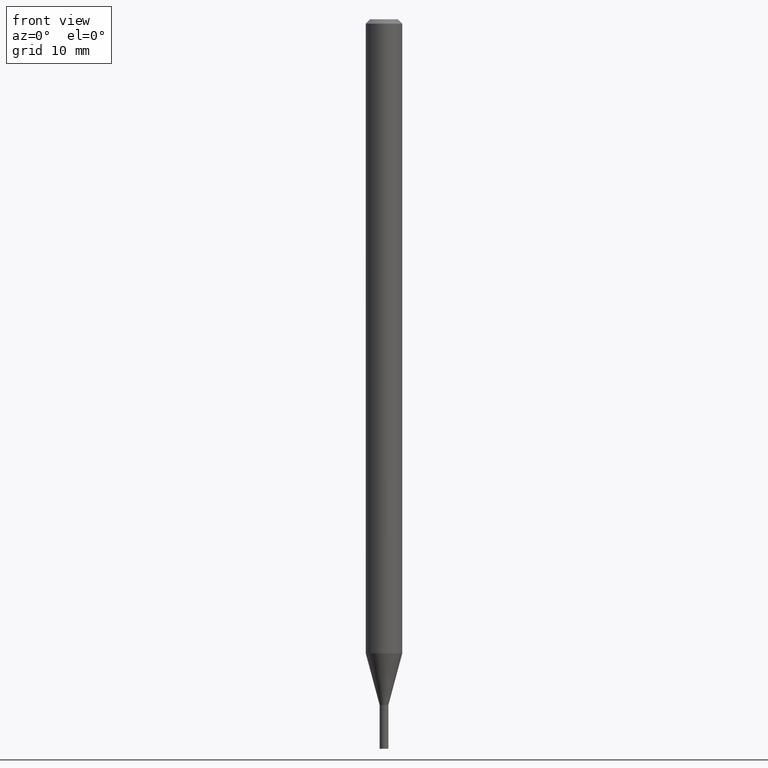
[diagram: clean part render]
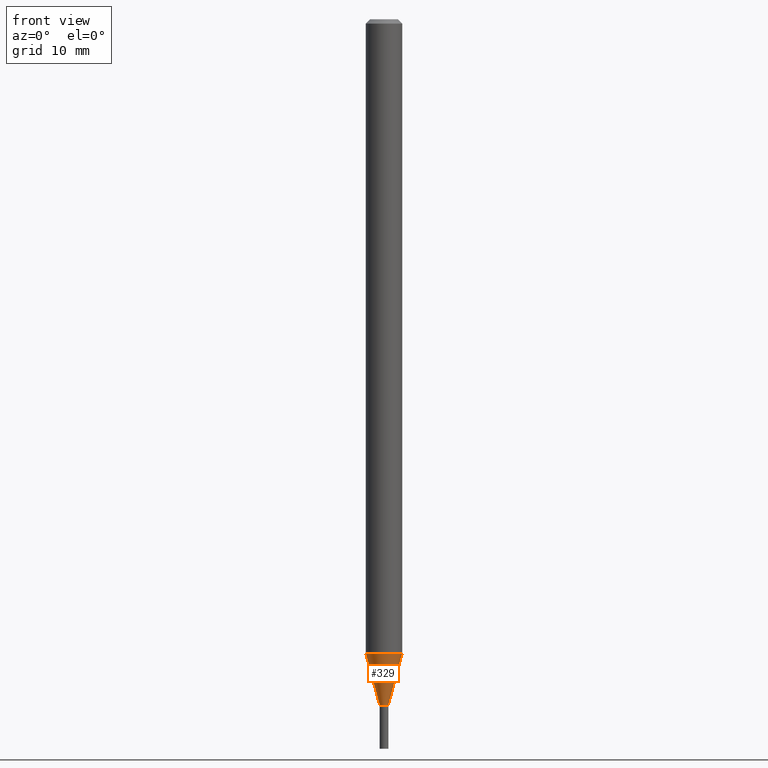
[diagram: same view with one face highlighted and labeled with its STEP entity id]
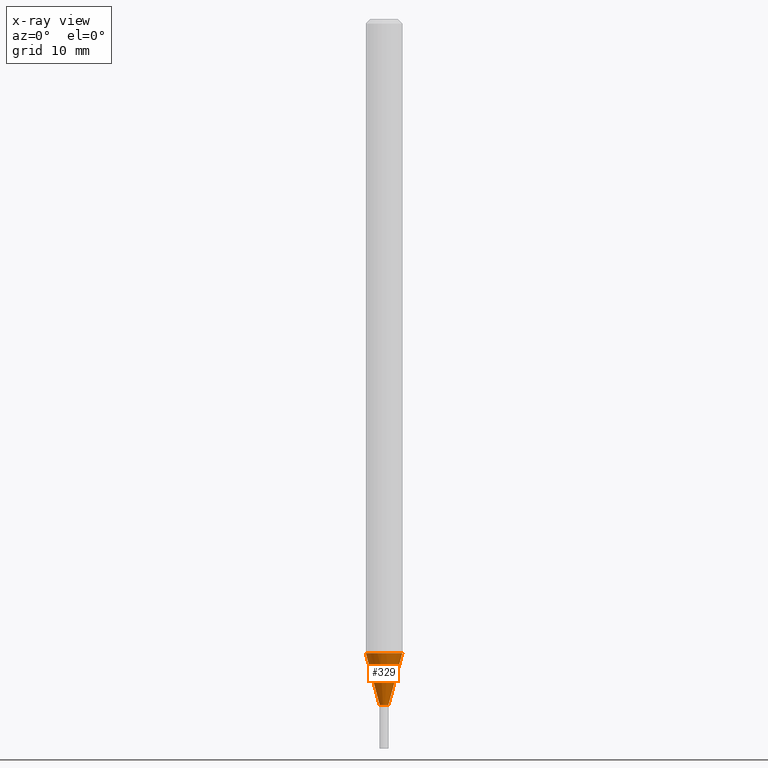
[diagram: x-ray of the same camera — body ghosted, the highlighted face saturated]
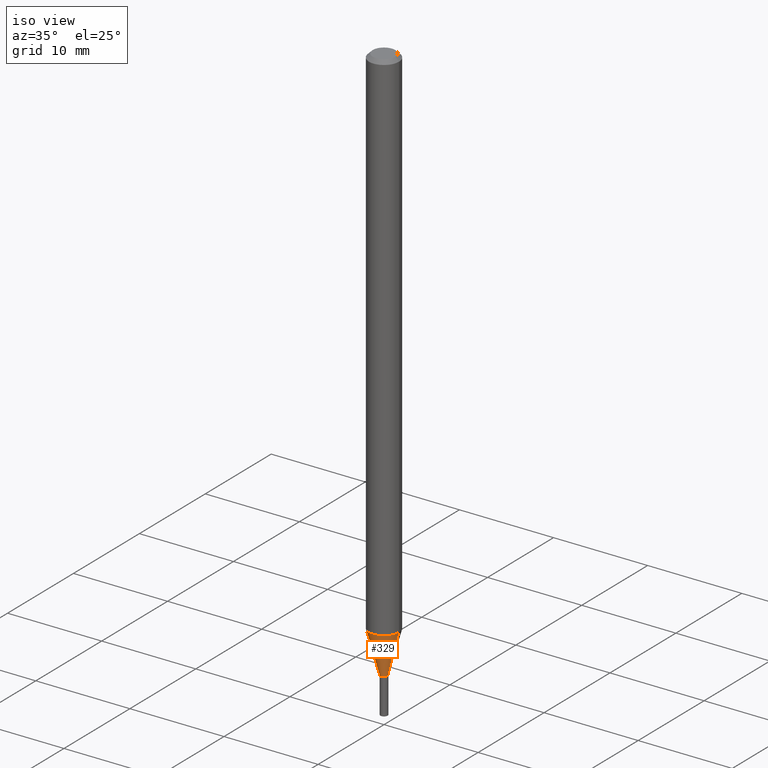
[diagram: same view with one face highlighted and labeled with its STEP entity id]
A machine part, front view. The second image highlights one B-rep face of the part: STEP entity #329.
The next image is the same camera in x-ray: the body ghosted, the highlighted face saturated — about 0% of this face is hidden behind the body in this view.
A second angle (iso view) of the same face is appended — the face is thin or edge-on in the first view.
In plain terms, the highlighted conical surface has half-angle 15 deg.
Its self-contained STEP definition (entity closure, byte-faithful):
#3 = DIRECTION ( 'NONE',  ( -2.445468806185136597E-29, 3.491481338843145583E-15, 1.000000000000000000 ) ) ;
#28 = ORIENTED_EDGE ( 'NONE', *, *, #127, .T. ) ;
#33 = CIRCLE ( 'NONE', #307, 0.01500000000000020067 ) ;
#39 = VECTOR ( 'NONE', #154, 39.37007874015747433 ) ;
#72 = AXIS2_PLACEMENT_3D ( 'NONE', #75, #3, #434 ) ;
#75 = CARTESIAN_POINT ( 'NONE',  ( 5.746851694535070554E-29, -8.204981146281391784E-15, -2.350000000000000089 ) ) ;
#76 = EDGE_LOOP ( 'NONE', ( #356, #437, #28, #178 ) ) ;
#95 = CONICAL_SURFACE ( 'NONE', #72, 0.01500000000000020067, 0.2617993877991501295 ) ;
#102 = VECTOR ( 'NONE', #454, 39.37007874015747433 ) ;
#110 = AXIS2_PLACEMENT_3D ( 'NONE', #398, #259, #116 ) ;
#116 = DIRECTION ( 'NONE',  ( 1.000000000000000000, -6.982962677686262766E-15, 0.000000000000000000 ) ) ;
#127 = EDGE_CURVE ( 'NONE', #228, #463, #272, .T. ) ;
#130 = LINE ( 'NONE', #388, #39 ) ;
#154 = DIRECTION ( 'NONE',  ( -0.2588190451025214611, 5.211531920934551042E-15, 0.9659258262890682012 ) ) ;
#177 = EDGE_CURVE ( 'NONE', #364, #254, #130, .T. ) ;
#178 = ORIENTED_EDGE ( 'NONE', *, *, #322, .F. ) ;
#189 = FACE_OUTER_BOUND ( 'NONE', #76, .T. ) ;
#226 = CARTESIAN_POINT ( 'NONE',  ( 0.01500000000000020067, -8.309725586446688309E-15, -2.350000000000000089 ) ) ;
#228 = VERTEX_POINT ( 'NONE', #226 ) ;
#230 = DIRECTION ( 'NONE',  ( -2.445468806185136597E-29, 3.491481338843145583E-15, 1.000000000000000000 ) ) ;
#254 = VERTEX_POINT ( 'NONE', #257 ) ;
#257 = CARTESIAN_POINT ( 'NONE',  ( -0.06249999999999999306, -7.141948613294875845E-15, -2.172727586640479824 ) ) ;
#259 = DIRECTION ( 'NONE',  ( -2.445468806185136597E-29, 3.491481338843145583E-15, 1.000000000000000000 ) ) ;
#272 = LINE ( 'NONE', #338, #102 ) ;
#273 = DIRECTION ( 'NONE',  ( 1.000000000000000000, -6.982962677686239889E-15, 0.000000000000000000 ) ) ;
#307 = AXIS2_PLACEMENT_3D ( 'NONE', #309, #230, #273 ) ;
#309 = CARTESIAN_POINT ( 'NONE',  ( 5.746851694535070554E-29, -8.204981146281391784E-15, -2.350000000000000089 ) ) ;
#322 = EDGE_CURVE ( 'NONE', #254, #463, #393, .T. ) ;
#329 = ADVANCED_FACE ( 'NONE', ( #189 ), #95, .T. ) ;
#338 = CARTESIAN_POINT ( 'NONE',  ( 0.01500000000000020067, -8.309725586446688309E-15, -2.350000000000000089 ) ) ;
#356 = ORIENTED_EDGE ( 'NONE', *, *, #177, .F. ) ;
#364 = VERTEX_POINT ( 'NONE', #404 ) ;
#388 = CARTESIAN_POINT ( 'NONE',  ( -0.01500000000000020067, -8.098399735917375872E-15, -2.350000000000000089 ) ) ;
#393 = CIRCLE ( 'NONE', #110, 0.06250000000000000000 ) ;
#398 = CARTESIAN_POINT ( 'NONE',  ( 5.313337537467207384E-29, -7.586037823144938462E-15, -2.172727586640479824 ) ) ;
#404 = CARTESIAN_POINT ( 'NONE',  ( -0.01500000000000020067, -7.620174174606125859E-15, -2.350000000000000089 ) ) ;
#412 = CARTESIAN_POINT ( 'NONE',  ( 0.06249999999999999306, -8.022472990500330131E-15, -2.172727586640479824 ) ) ;
#427 = EDGE_CURVE ( 'NONE', #364, #228, #33, .T. ) ;
#434 = DIRECTION ( 'NONE',  ( 1.000000000000000000, -6.982962677686239889E-15, 0.000000000000000000 ) ) ;
#437 = ORIENTED_EDGE ( 'NONE', *, *, #427, .T. ) ;
#454 = DIRECTION ( 'NONE',  ( 0.2588190451025214611, 1.565188264969621573E-15, 0.9659258262890682012 ) ) ;
#463 = VERTEX_POINT ( 'NONE', #412 ) ;